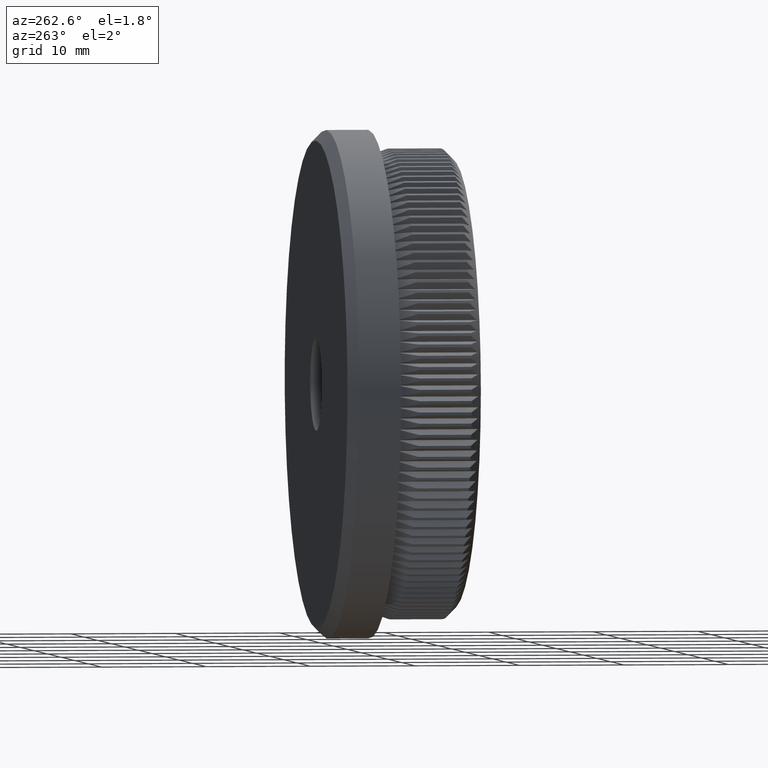
[diagram: clean part render]
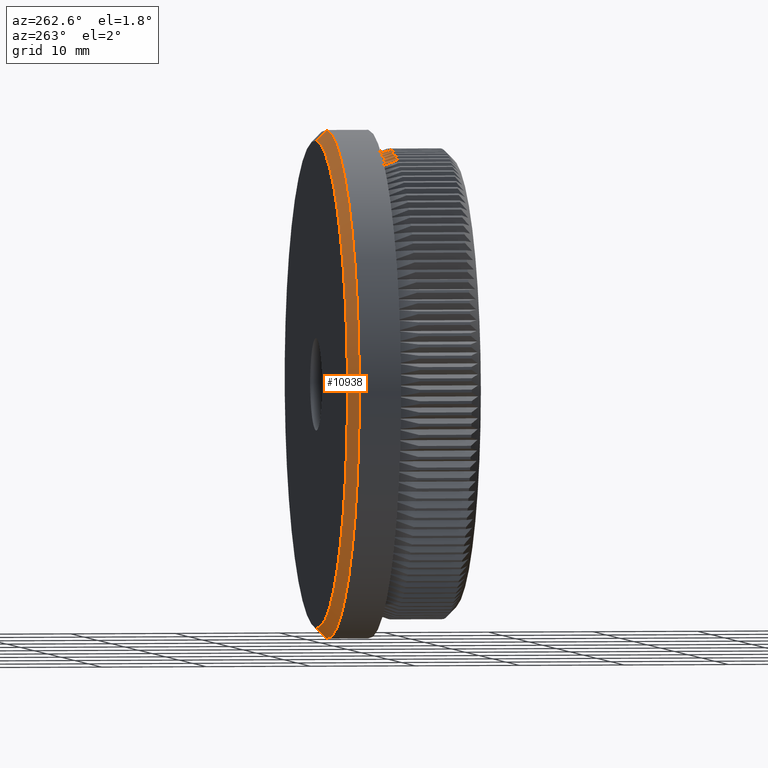
[diagram: same view with one face highlighted and labeled with its STEP entity id]
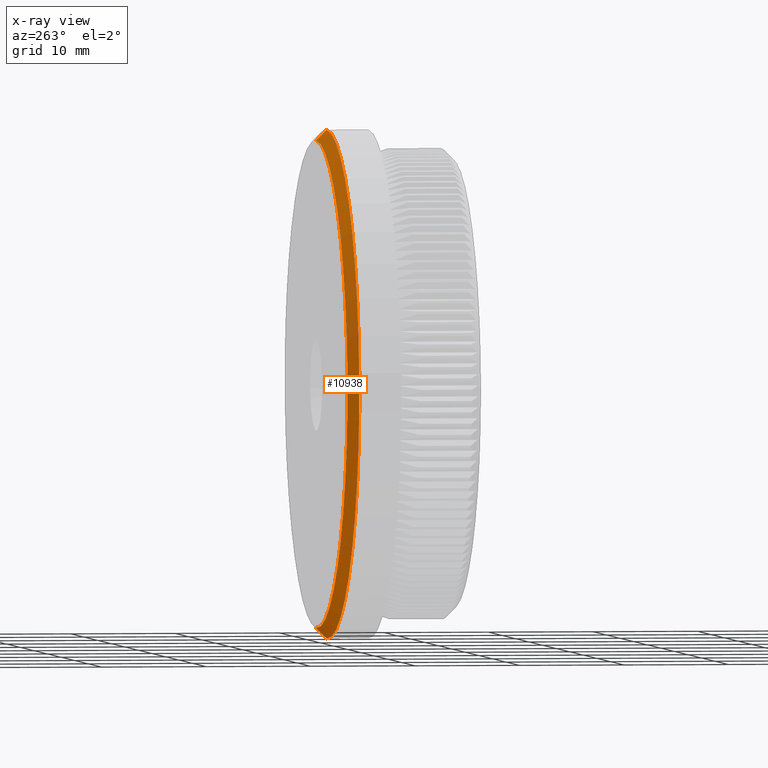
[diagram: x-ray of the same camera — body ghosted, the highlighted face saturated]
A machine part, auxiliary view. The second image highlights one B-rep face of the part: STEP entity #10938.
The next image is the same camera in x-ray: the body ghosted, the highlighted face saturated — about 0% of this face is hidden behind the body in this view.
In plain terms, the highlighted conical surface has half-angle 45 deg.
Its self-contained STEP definition (entity closure, byte-faithful):
#57 = CARTESIAN_POINT ( 'NONE',  ( 0.0000000000000000000, 11.99999999999999500, 0.0000000000000000000 ) ) ;
#264 = DIRECTION ( 'NONE',  ( -0.0000000000000000000, -1.000000000000000000, -0.0000000000000000000 ) ) ;
#534 = CARTESIAN_POINT ( 'NONE',  ( 2.896289679983490000E-015, 13.00000000000000000, 23.14999999999999900 ) ) ;
#703 = VECTOR ( 'NONE', #3788, 1000.000000000000000 ) ;
#1454 = DIRECTION ( 'NONE',  ( 0.0000000000000000000, -0.7071067811865487900, -0.7071067811865463500 ) ) ;
#2177 = DIRECTION ( 'NONE',  ( 0.0000000000000000000, 1.000000000000000000, 0.0000000000000000000 ) ) ;
#3100 = VERTEX_POINT ( 'NONE', #6747 ) ;
#3355 = VERTEX_POINT ( 'NONE', #27318 ) ;
#3788 = DIRECTION ( 'NONE',  ( 8.659560562354918100E-017, -0.7071067811865487900, 0.7071067811865463500 ) ) ;
#4595 = DIRECTION ( 'NONE',  ( 0.0000000000000000000, 0.0000000000000000000, 1.000000000000000000 ) ) ;
#4941 = CONICAL_SURFACE ( 'NONE', #24238, 24.14999999999999900, 0.7853981633974466100 ) ;
#5550 = DIRECTION ( 'NONE',  ( 0.0000000000000000000, 0.0000000000000000000, 1.000000000000000000 ) ) ;
#6004 = VERTEX_POINT ( 'NONE', #30790 ) ;
#6421 = ORIENTED_EDGE ( 'NONE', *, *, #18390, .F. ) ;
#6747 = CARTESIAN_POINT ( 'NONE',  ( 0.0000000000000000000, 11.99999999999999500, -24.14999999999999900 ) ) ;
#8809 = AXIS2_PLACEMENT_3D ( 'NONE', #28055, #264, #5550 ) ;
#10938 = ADVANCED_FACE ( 'NONE', ( #32545 ), #4941, .T. ) ;
#11906 = ORIENTED_EDGE ( 'NONE', *, *, #12756, .F. ) ;
#12756 = EDGE_CURVE ( 'NONE', #6004, #3100, #32047, .T. ) ;
#13687 = CARTESIAN_POINT ( 'NONE',  ( 0.0000000000000000000, 11.99999999999999500, -24.14999999999999900 ) ) ;
#15040 = AXIS2_PLACEMENT_3D ( 'NONE', #27634, #2177, #4595 ) ;
#15160 = DIRECTION ( 'NONE',  ( 0.0000000000000000000, 0.0000000000000000000, -1.000000000000000000 ) ) ;
#16091 = VECTOR ( 'NONE', #1454, 1000.000000000000000 ) ;
#17604 = DIRECTION ( 'NONE',  ( -0.0000000000000000000, -1.000000000000000000, -0.0000000000000000000 ) ) ;
#18390 = EDGE_CURVE ( 'NONE', #3355, #21995, #19418, .T. ) ;
#18894 = CARTESIAN_POINT ( 'NONE',  ( 2.957522019940857900E-015, 11.99999999999999500, 24.14999999999999900 ) ) ;
#19418 = CIRCLE ( 'NONE', #15040, 23.14999999999999900 ) ;
#21995 = VERTEX_POINT ( 'NONE', #534 ) ;
#24238 = AXIS2_PLACEMENT_3D ( 'NONE', #57, #17604, #15160 ) ;
#26164 = EDGE_CURVE ( 'NONE', #21995, #6004, #27531, .T. ) ;
#26252 = EDGE_CURVE ( 'NONE', #3355, #3100, #29496, .T. ) ;
#27318 = CARTESIAN_POINT ( 'NONE',  ( 0.0000000000000000000, 13.00000000000000000, -23.14999999999999900 ) ) ;
#27531 = LINE ( 'NONE', #18894, #703 ) ;
#27634 = CARTESIAN_POINT ( 'NONE',  ( 0.0000000000000000000, 13.00000000000000000, 0.0000000000000000000 ) ) ;
#27999 = ORIENTED_EDGE ( 'NONE', *, *, #26252, .T. ) ;
#28055 = CARTESIAN_POINT ( 'NONE',  ( 0.0000000000000000000, 11.99999999999999500, 0.0000000000000000000 ) ) ;
#29449 = ORIENTED_EDGE ( 'NONE', *, *, #26164, .F. ) ;
#29496 = LINE ( 'NONE', #13687, #16091 ) ;
#30790 = CARTESIAN_POINT ( 'NONE',  ( 2.957522019940857900E-015, 11.99999999999999500, 24.14999999999999900 ) ) ;
#32047 = CIRCLE ( 'NONE', #8809, 24.14999999999999900 ) ;
#32165 = EDGE_LOOP ( 'NONE', ( #29449, #6421, #27999, #11906 ) ) ;
#32545 = FACE_OUTER_BOUND ( 'NONE', #32165, .T. ) ;